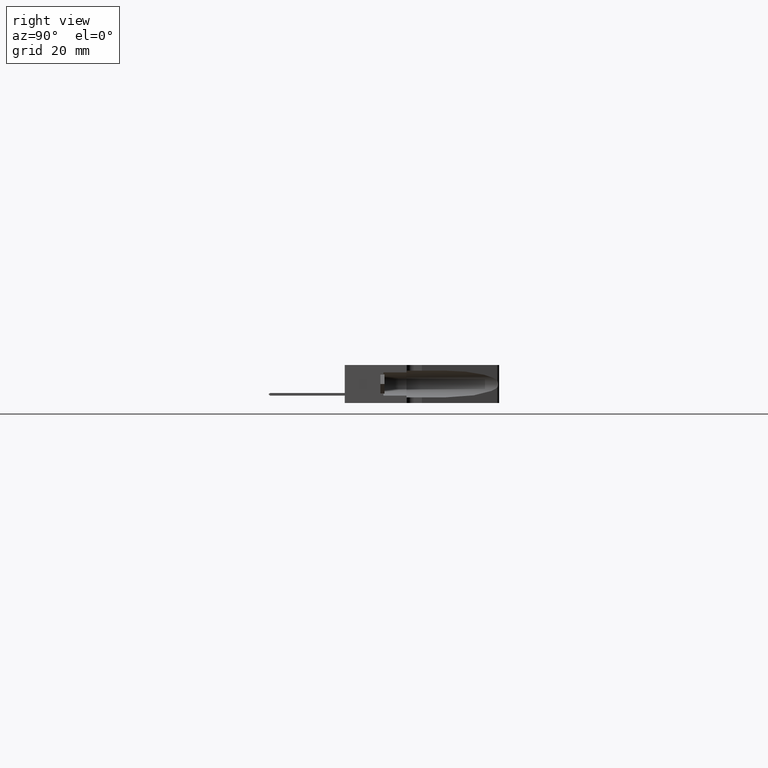
[diagram: clean part render]
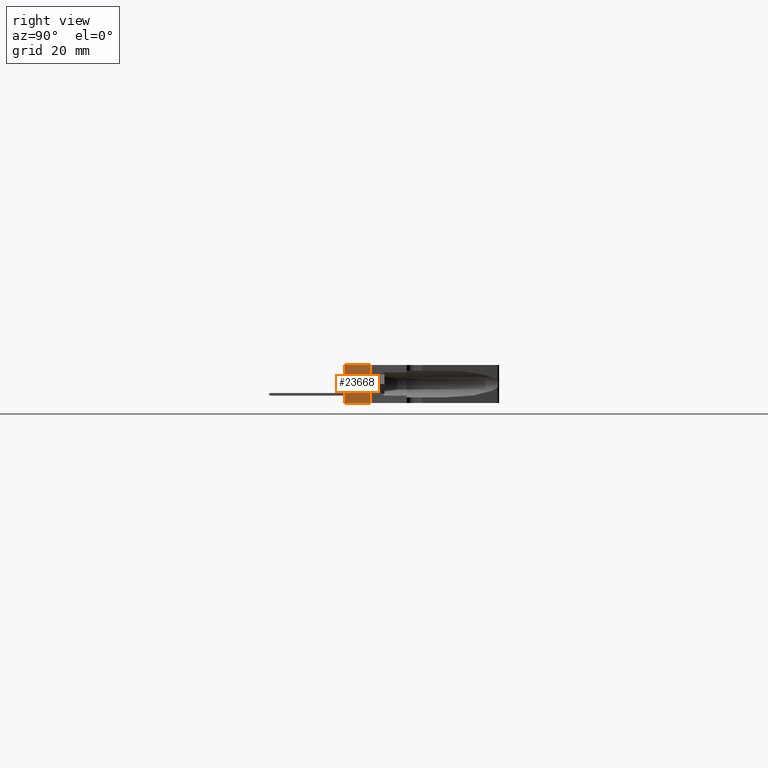
[diagram: same view with one face highlighted and labeled with its STEP entity id]
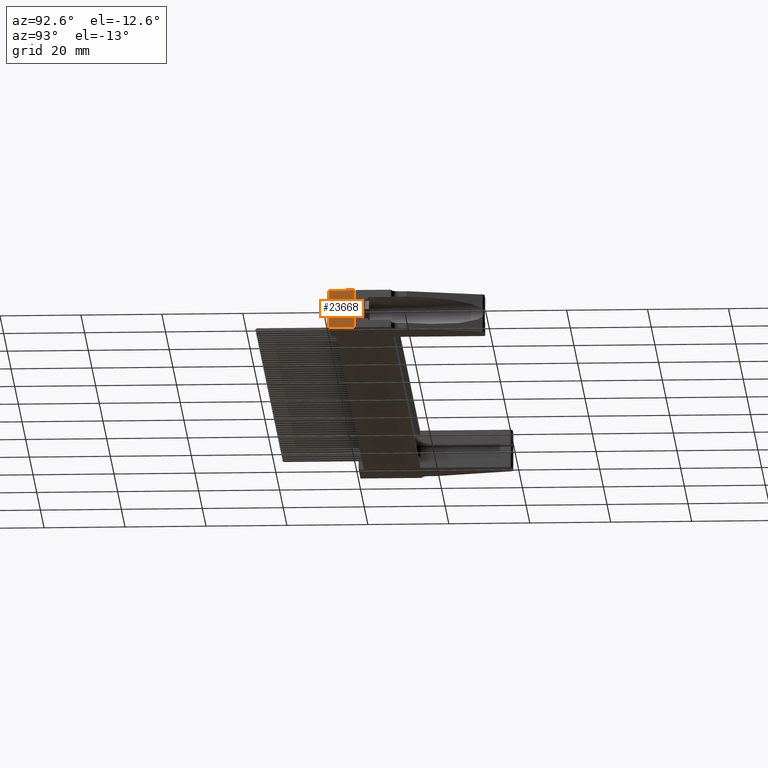
[diagram: same view with one face highlighted and labeled with its STEP entity id]
A machine part, right view. The second image highlights one B-rep face of the part: STEP entity #23668.
A second angle (auxiliary view) of the same face is appended — the face is thin or edge-on in the first view.
In plain terms, the highlighted planar face has unit normal (-1, 0, 0).
Its self-contained STEP definition (entity closure, byte-faithful):
#932 = ORIENTED_EDGE ( 'NONE', *, *, #38653, .T. ) ;
#1335 = VERTEX_POINT ( 'NONE', #13962 ) ;
#2828 = CARTESIAN_POINT ( 'NONE',  ( 6.735000000000000300, 0.0000000000000000000, -0.3700000000000000000 ) ) ;
#3002 = EDGE_CURVE ( 'NONE', #1335, #3117, #33230, .T. ) ;
#3117 = VERTEX_POINT ( 'NONE', #31866 ) ;
#3689 = DIRECTION ( 'NONE',  ( -0.0000000000000000000, -1.000000000000000000, -0.0000000000000000000 ) ) ;
#9323 = VECTOR ( 'NONE', #24440, 39.37007874015748100 ) ;
#9738 = CARTESIAN_POINT ( 'NONE',  ( 6.735000000000000300, 0.0000000000000000000, 0.0000000000000000000 ) ) ;
#9792 = VERTEX_POINT ( 'NONE', #13925 ) ;
#9895 = VECTOR ( 'NONE', #33516, 39.37007874015748100 ) ;
#9898 = DIRECTION ( 'NONE',  ( 0.0000000000000000000, 0.0000000000000000000, 1.000000000000000000 ) ) ;
#10965 = LINE ( 'NONE', #9738, #9895 ) ;
#11622 = ORIENTED_EDGE ( 'NONE', *, *, #18633, .F. ) ;
#11648 = FACE_OUTER_BOUND ( 'NONE', #43475, .T. ) ;
#11708 = LINE ( 'NONE', #28120, #14916 ) ;
#11802 = LINE ( 'NONE', #33878, #25600 ) ;
#13925 = CARTESIAN_POINT ( 'NONE',  ( 6.735000000000000300, 0.2500000000000001100, -0.3700000000000000000 ) ) ;
#13962 = CARTESIAN_POINT ( 'NONE',  ( 6.735000000000000300, 0.2500000000000000000, 0.0000000000000000000 ) ) ;
#14916 = VECTOR ( 'NONE', #21587, 39.37007874015748100 ) ;
#18633 = EDGE_CURVE ( 'NONE', #9792, #31689, #11802, .T. ) ;
#20920 = AXIS2_PLACEMENT_3D ( 'NONE', #35878, #26798, #9898 ) ;
#21587 = DIRECTION ( 'NONE',  ( 0.0000000000000000000, 0.0000000000000000000, -1.000000000000000000 ) ) ;
#23668 = ADVANCED_FACE ( 'NONE', ( #11648 ), #32626, .F. ) ;
#24440 = DIRECTION ( 'NONE',  ( -0.0000000000000000000, -1.000000000000000000, -0.0000000000000000000 ) ) ;
#25600 = VECTOR ( 'NONE', #3689, 39.37007874015748100 ) ;
#26798 = DIRECTION ( 'NONE',  ( -1.000000000000000000, 0.0000000000000000000, 0.0000000000000000000 ) ) ;
#27996 = EDGE_CURVE ( 'NONE', #1335, #9792, #11708, .T. ) ;
#28120 = CARTESIAN_POINT ( 'NONE',  ( 6.735000000000000300, 0.2500000000000000000, 0.0000000000000000000 ) ) ;
#31689 = VERTEX_POINT ( 'NONE', #2828 ) ;
#31866 = CARTESIAN_POINT ( 'NONE',  ( 6.735000000000000300, 0.0000000000000000000, 0.0000000000000000000 ) ) ;
#32626 = PLANE ( 'NONE',  #20920 ) ;
#33230 = LINE ( 'NONE', #34250, #9323 ) ;
#33264 = ORIENTED_EDGE ( 'NONE', *, *, #27996, .F. ) ;
#33516 = DIRECTION ( 'NONE',  ( 0.0000000000000000000, 0.0000000000000000000, -1.000000000000000000 ) ) ;
#33878 = CARTESIAN_POINT ( 'NONE',  ( 6.735000000000000300, 0.5999999999999999800, -0.3700000000000000000 ) ) ;
#34250 = CARTESIAN_POINT ( 'NONE',  ( 6.735000000000000300, 0.5999999999999999800, 0.0000000000000000000 ) ) ;
#35878 = CARTESIAN_POINT ( 'NONE',  ( 6.735000000000000300, 0.5999999999999999800, 0.0000000000000000000 ) ) ;
#36379 = ORIENTED_EDGE ( 'NONE', *, *, #3002, .T. ) ;
#38653 = EDGE_CURVE ( 'NONE', #3117, #31689, #10965, .T. ) ;
#43475 = EDGE_LOOP ( 'NONE', ( #11622, #33264, #36379, #932 ) ) ;